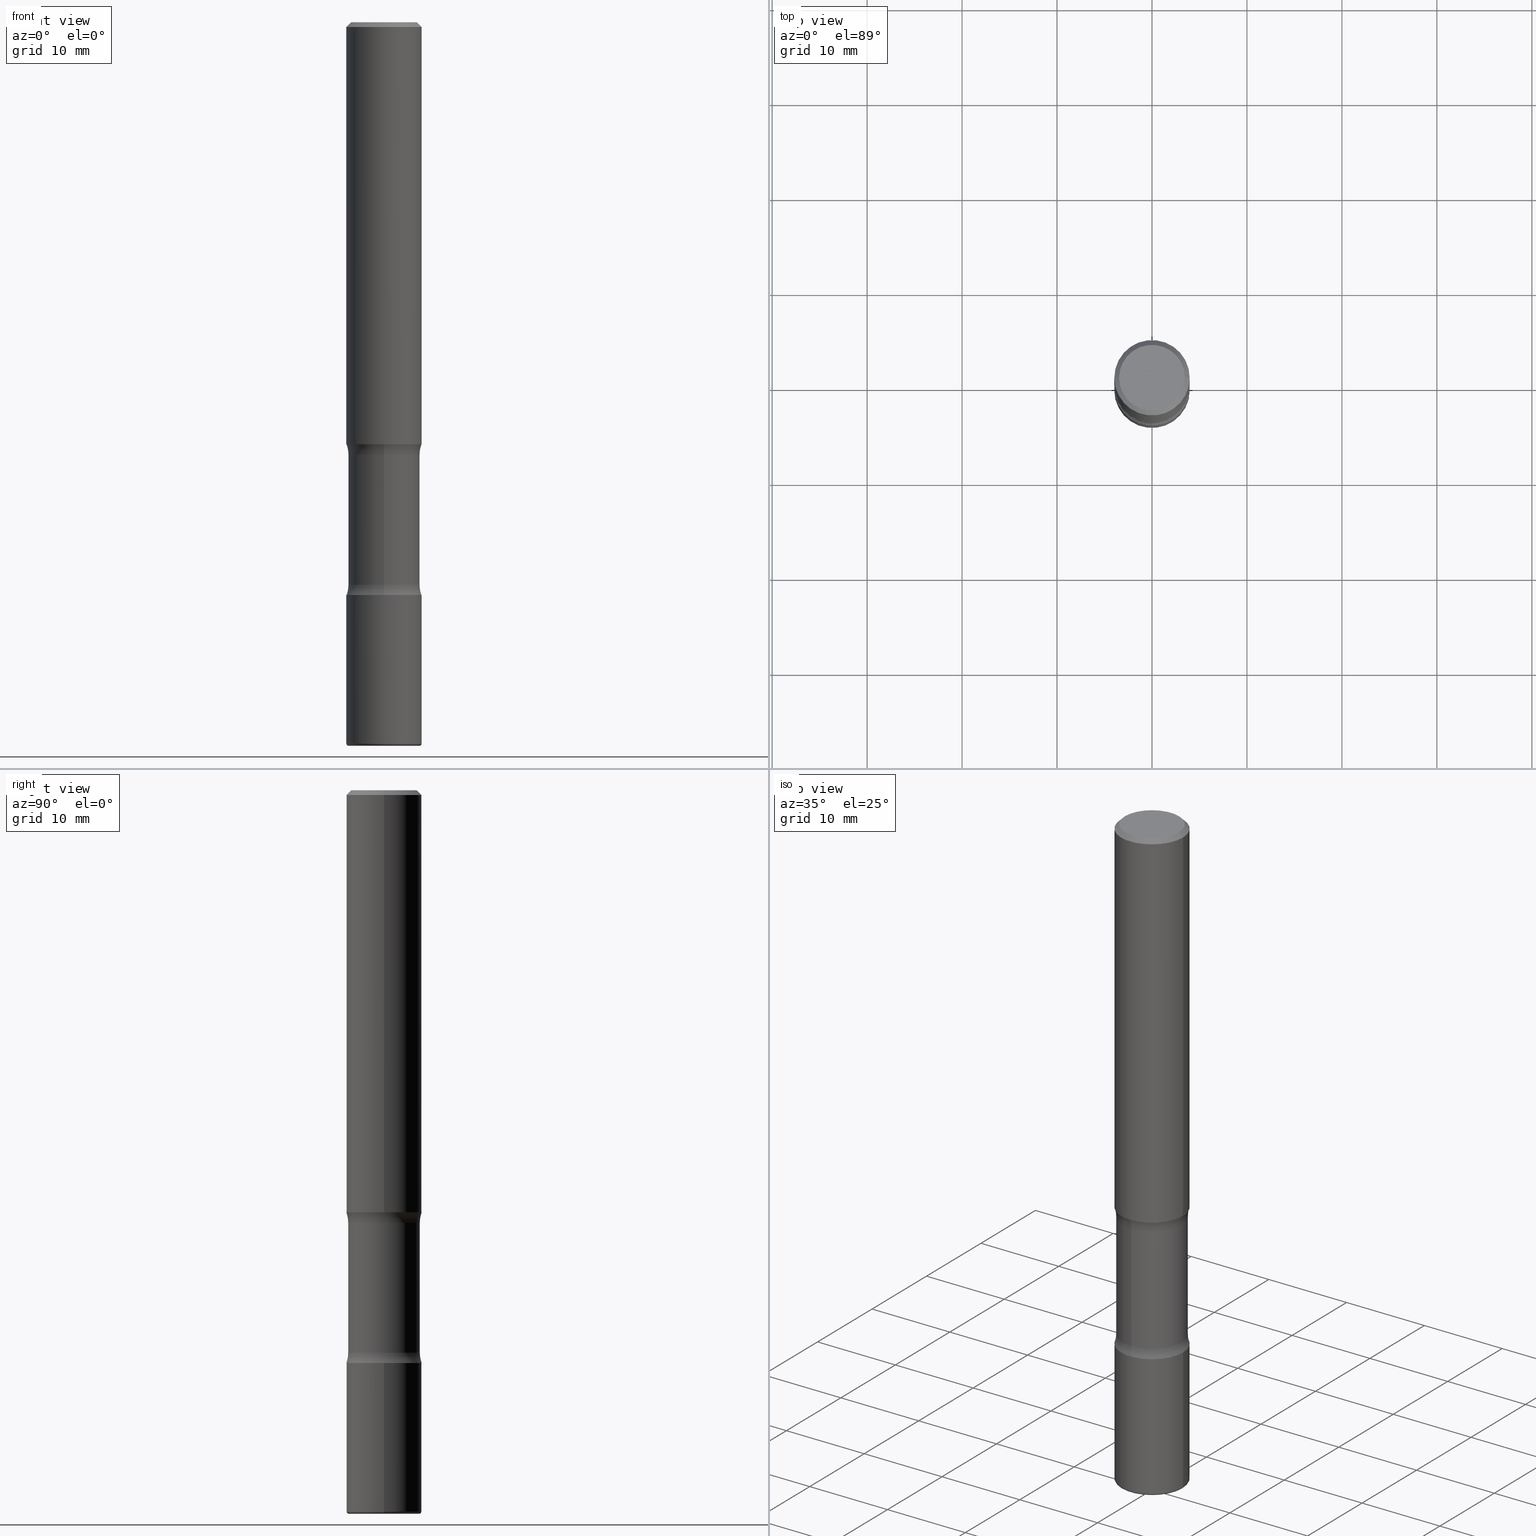
[diagram: canonical four-view strip — front | top / right | iso, engineering-drawing reading convention]
A machine part, canonical four-view strip (front | top / right | iso — engineering-drawing reading convention). The complete STEP part file that produces these views, byte-faithful:
ISO-10303-21;
HEADER;
FILE_DESCRIPTION (( 'STEP AP203' ),
    '1' );
FILE_NAME ('37812.STEP',
    '2024-03-02T00:27:00',
    ( '' ),
    ( '' ),
    'SwSTEP 2.0',
    'SolidWorks 2023',
    '' );
FILE_SCHEMA (( 'CONFIG_CONTROL_DESIGN' ));
ENDSEC;

DATA;
#1 = EDGE_CURVE ( 'NONE', #314, #108, #77, .T. ) ;
#2 = CARTESIAN_POINT ( 'NONE',  ( 4.890937612370273159E-31, -6.982962677686291609E-17, -0.02000000000000000042 ) ) ;
#3 = AXIS2_PLACEMENT_3D ( 'NONE', #444, #455, #98 ) ;
#4 = AXIS2_PLACEMENT_3D ( 'NONE', #192, #530, #363 ) ;
#5 = DIRECTION ( 'NONE',  ( -2.445468806185136597E-29, 3.491481338843145583E-15, 1.000000000000000000 ) ) ;
#6 = ORIENTED_EDGE ( 'NONE', *, *, #373, .T. ) ;
#7 = APPLICATION_CONTEXT ( 'configuration controlled 3d designs of mechanical parts and assemblies' ) ;
#8 = CARTESIAN_POINT ( 'NONE',  ( -1.071952812151744220E-15, -0.1562500000000084099, -2.375000000000000000 ) ) ;
#9 = CARTESIAN_POINT ( 'NONE',  ( 1.091087918388537746E-15, 0.1562499999999918121, -2.375000000000000888 ) ) ;
#10 = ORIENTED_EDGE ( 'NONE', *, *, #79, .F. ) ;
#11 = DIRECTION ( 'NONE',  ( 1.000000000000000000, -6.982962677686270655E-15, 0.000000000000000000 ) ) ;
#12 = VERTEX_POINT ( 'NONE', #418 ) ;
#13 = CARTESIAN_POINT ( 'NONE',  ( 0.1362499999999998712, -1.038262645562517138E-15, 6.957025900226689470E-30 ) ) ;
#14 = EDGE_CURVE ( 'NONE', #503, #149, #282, .T. ) ;
#15 = FACE_OUTER_BOUND ( 'NONE', #70, .T. ) ;
#16 = LOCAL_TIME ( 19, 27, 0.000000000000000000, #428 ) ;
#17 = EDGE_LOOP ( 'NONE', ( #308, #157, #288, #485 ) ) ;
#18 = CARTESIAN_POINT ( 'NONE',  ( 0.000000000000000000, 0.000000000000000000, 0.000000000000000000 ) ) ;
#19 = CC_DESIGN_APPROVAL ( #160, ( #33 ) ) ;
#20 = VERTEX_POINT ( 'NONE', #406 ) ;
#21 = DIRECTION ( 'NONE',  ( -2.445468806185136597E-29, 3.491481338843145583E-15, 1.000000000000000000 ) ) ;
#22 = ORIENTED_EDGE ( 'NONE', *, *, #450, .F. ) ;
#23 = DIRECTION ( 'NONE',  ( 1.000000000000000000, -6.982962677686266711E-15, 4.876176775795936353E-29 ) ) ;
#24 = PLANE ( 'NONE',  #147 ) ;
#25 = DIRECTION ( 'NONE',  ( 2.523926373086038410E-29, -3.379125637513666367E-15, -1.000000000000000000 ) ) ;
#26 = ORIENTED_EDGE ( 'NONE', *, *, #323, .T. ) ;
#27 = DIMENSIONAL_EXPONENTS ( 1.000000000000000000, 0.000000000000000000, 0.000000000000000000, 0.000000000000000000, 0.000000000000000000, 0.000000000000000000, 0.000000000000000000 ) ;
#28 = FACE_OUTER_BOUND ( 'NONE', #103, .T. ) ;
#29 = ADVANCED_BREP_SHAPE_REPRESENTATION ( '37812', ( #80, #81, #74, #364 ), #312 ) ;
#30 = DIRECTION ( 'NONE',  ( 6.982962677686265922E-15, 1.000000000000000000, -3.379125637513666367E-15 ) ) ;
#31 = ORIENTED_EDGE ( 'NONE', *, *, #328, .T. ) ;
#32 = CIRCLE ( 'NONE', #421, 0.1562500000000001388 ) ;
#33 = SECURITY_CLASSIFICATION ( '', '', #305 ) ;
#34 = EDGE_CURVE ( 'NONE', #116, #458, #425, .T. ) ;
#35 = COORDINATED_UNIVERSAL_TIME_OFFSET ( 5, 0, .BEHIND. ) ;
#36 = CIRCLE ( 'NONE', #380, 0.1484375000000000278 ) ;
#37 = AXIS2_PLACEMENT_3D ( 'NONE', #267, #442, #52 ) ;
#38 = DIRECTION ( 'NONE',  ( 0.000000000000000000, 0.000000000000000000, 1.000000000000000000 ) ) ;
#39 = CARTESIAN_POINT ( 'NONE',  ( -0.1462500000000001021, -9.382290721998072185E-15, -3.000000000000000888 ) ) ;
#40 = DIRECTION ( 'NONE',  ( 1.000000000000000000, -6.982962677686269077E-15, 0.000000000000000000 ) ) ;
#41 = APPROVAL_STATUS ( 'not_yet_approved' ) ;
#42 = DIRECTION ( 'NONE',  ( -1.000000000000000000, 6.982962677686266711E-15, 0.000000000000000000 ) ) ;
#43 = EDGE_CURVE ( 'NONE', #524, #116, #551, .T. ) ;
#44 = PERSON_AND_ORGANIZATION_ROLE ( 'creator' ) ;
#45 = AXIS2_PLACEMENT_3D ( 'NONE', #195, #366, #333 ) ;
#46 = CARTESIAN_POINT ( 'NONE',  ( 1.091087918388522561E-15, 0.1562499999999940048, -1.750000000000001110 ) ) ;
#47 = ADVANCED_FACE ( 'NONE', ( #177 ), #170, .F. ) ;
#48 = DIRECTION ( 'NONE',  ( 1.000000000000000000, -6.982962677686266711E-15, 0.000000000000000000 ) ) ;
#49 = APPROVAL_STATUS ( 'not_yet_approved' ) ;
#50 = CIRCLE ( 'NONE', #122, 0.1484375000000000278 ) ;
#51 = CONICAL_SURFACE ( 'NONE', #382, 0.1562499999999998612, 0.7853981633974480570 ) ;
#52 = DIRECTION ( 'NONE',  ( 6.982962677686265133E-15, 1.000000000000000000, -3.680805717779217644E-15 ) ) ;
#53 = ORIENTED_EDGE ( 'NONE', *, *, #328, .F. ) ;
#54 = EDGE_CURVE ( 'NONE', #12, #20, #36, .T. ) ;
#55 = CARTESIAN_POINT ( 'NONE',  ( 7.385442397868472267E-29, -1.040422170319851125E-14, -2.999999999999999556 ) ) ;
#56 = ORIENTED_EDGE ( 'NONE', *, *, #411, .T. ) ;
#57 = DIRECTION ( 'NONE',  ( 1.000000000000000000, -6.982962677686266711E-15, 4.876176775795936353E-29 ) ) ;
#58 = ORIENTED_EDGE ( 'NONE', *, *, #221, .T. ) ;
#59 = DIRECTION ( 'NONE',  ( 6.982962677686266711E-15, 1.000000000000000000, -3.496765431890253370E-15 ) ) ;
#60 = LINE ( 'NONE', #235, #396 ) ;
#61 = VERTEX_POINT ( 'NONE', #345 ) ;
#62 = EDGE_CURVE ( 'NONE', #190, #533, #193, .T. ) ;
#63 = DIRECTION ( 'NONE',  ( 2.523926373086038410E-29, -3.379125637513666367E-15, -1.000000000000000000 ) ) ;
#64 = VECTOR ( 'NONE', #109, 39.37007874015748143 ) ;
#65 = ORIENTED_EDGE ( 'NONE', *, *, #79, .T. ) ;
#66 = FACE_OUTER_BOUND ( 'NONE', #321, .T. ) ;
#67 = ORIENTED_EDGE ( 'NONE', *, *, #383, .T. ) ;
#68 = DIRECTION ( 'NONE',  ( 6.860497997771530774E-15, 1.000000000000000000, 0.000000000000000000 ) ) ;
#69 = ADVANCED_FACE ( 'NONE', ( #342 ), #146, .F. ) ;
#70 = EDGE_LOOP ( 'NONE', ( #319, #10 ) ) ;
#71 = DIRECTION ( 'NONE',  ( -1.000000000000000000, 6.982962677686265922E-15, -4.883557194083112340E-29 ) ) ;
#72 = DIRECTION ( 'NONE',  ( 6.860497997771530774E-15, 1.000000000000000000, 0.000000000000000000 ) ) ;
#73 = ADVANCED_FACE ( 'NONE', ( #388 ), #132, .F. ) ;
#74 = MANIFOLD_SOLID_BREP ( 'Body-Move/Copy2[4]', #133 ) ;
#75 = DIRECTION ( 'NONE',  ( 1.000000000000000000, -6.982962677686266711E-15, 4.876176775795936353E-29 ) ) ;
#76 = FACE_OUTER_BOUND ( 'NONE', #496, .T. ) ;
#77 = CIRCLE ( 'NONE', #196, 0.1362499999999998712 ) ;
#78 = APPROVAL_PERSON_ORGANIZATION ( #430, #553, #389 ) ;
#79 = EDGE_CURVE ( 'NONE', #402, #105, #501, .T. ) ;
#80 = MANIFOLD_SOLID_BREP ( 'Body-Move/Copy2[1]', #520 ) ;
#81 = MANIFOLD_SOLID_BREP ( 'Body-Move/Copy2[2]', #167 ) ;
#82 = CARTESIAN_POINT ( 'NONE',  ( -0.1562500000000001388, 1.110223024625157526E-15, -7.685836078523296765E-30 ) ) ;
#83 = TOROIDAL_SURFACE ( 'NONE', #261, 0.2734375000000000000, 0.1250000000000000000 ) ;
#84 = PERSON_AND_ORGANIZATION ( #423, #433 ) ;
#85 = CARTESIAN_POINT ( 'NONE',  ( -0.1562500000000001665, -9.329306178515849742E-15, -2.990000000000000657 ) ) ;
#86 = LENGTH_MEASURE_WITH_UNIT ( LENGTH_MEASURE( 0.02539999999999999897 ), #336 );
#87 = ADVANCED_FACE ( 'NONE', ( #91 ), #437, .T. ) ;
#88 = APPROVAL_DATE_TIME ( #477, #553 ) ;
#89 = AXIS2_PLACEMENT_3D ( 'NONE', #18, #199, #369 ) ;
#90 = CONICAL_SURFACE ( 'NONE', #534, 0.1562499999999998612, 0.7853981633974480570 ) ;
#91 = FACE_OUTER_BOUND ( 'NONE', #17, .T. ) ;
#92 = FACE_OUTER_BOUND ( 'NONE', #227, .T. ) ;
#93 = CYLINDRICAL_SURFACE ( 'NONE', #89, 0.1562499999999999722 ) ;
#94 = ORIENTED_EDGE ( 'NONE', *, *, #62, .T. ) ;
#95 = AXIS2_PLACEMENT_3D ( 'NONE', #393, #213, #338 ) ;
#96 = EDGE_CURVE ( 'NONE', #458, #97, #32, .T. ) ;
#97 = VERTEX_POINT ( 'NONE', #85 ) ;
#98 = DIRECTION ( 'NONE',  ( 1.000000000000000000, -6.982962677686266711E-15, 0.000000000000000000 ) ) ;
#99 = ORIENTED_EDGE ( 'NONE', *, *, #248, .T. ) ;
#100 = FACE_OUTER_BOUND ( 'NONE', #377, .T. ) ;
#101 = ORIENTED_EDGE ( 'NONE', *, *, #538, .F. ) ;
#102 = CARTESIAN_POINT ( 'NONE',  ( 4.230534431510926007E-29, -6.180314656306430561E-15, -1.750000000000000444 ) ) ;
#103 = EDGE_LOOP ( 'NONE', ( #324, #26, #448, #365 ) ) ;
#104 = DIRECTION ( 'NONE',  ( -6.982962677686265922E-15, -1.000000000000000000, 3.379125637513666367E-15 ) ) ;
#105 = VERTEX_POINT ( 'NONE', #46 ) ;
#106 = DIRECTION ( 'NONE',  ( 6.982962677686265133E-15, 1.000000000000000000, -3.680805717779217644E-15 ) ) ;
#107 = EDGE_CURVE ( 'NONE', #306, #190, #219, .T. ) ;
#108 = VERTEX_POINT ( 'NONE', #13 ) ;
#109 = DIRECTION ( 'NONE',  ( -2.445468806185136877E-29, 3.491481338843145188E-15, 1.000000000000000000 ) ) ;
#110 = CIRCLE ( 'NONE', #548, 0.1562500000000001110 ) ;
#111 = VERTEX_POINT ( 'NONE', #361 ) ;
#112 = DIRECTION ( 'NONE',  ( 6.982962677686265133E-15, 1.000000000000000000, -3.680805717779216855E-15 ) ) ;
#113 = CC_DESIGN_DATE_AND_TIME_ASSIGNMENT ( #297, #475, ( #435 ) ) ;
#114 = EDGE_LOOP ( 'NONE', ( #140, #499, #162, #539 ) ) ;
#115 = CARTESIAN_POINT ( 'NONE',  ( -1.875917421265595575E-15, -0.2734375000000081046, -2.331501840915390034 ) ) ;
#116 = VERTEX_POINT ( 'NONE', #185 ) ;
#117 = CARTESIAN_POINT ( 'NONE',  ( 0.1562500000000001665, -1.153061712152948940E-14, -2.990000000000000657 ) ) ;
#118 = CC_DESIGN_SECURITY_CLASSIFICATION ( #33, ( #270 ) ) ;
#119 = APPROVAL_DATE_TIME ( #299, #417 ) ;
#120 = EDGE_CURVE ( 'NONE', #116, #524, #294, .T. ) ;
#121 = APPLICATION_PROTOCOL_DEFINITION ( 'international standard', 'config_control_design', 1994, #7 ) ;
#122 = AXIS2_PLACEMENT_3D ( 'NONE', #500, #486, #112 ) ;
#123 = DIRECTION ( 'NONE',  ( 2.523926373086038410E-29, -3.379125637513666367E-15, -1.000000000000000000 ) ) ;
#124 = AXIS2_PLACEMENT_3D ( 'NONE', #218, #470, #178 ) ;
#125 = CARTESIAN_POINT ( 'NONE',  ( 0.000000000000000000, 0.000000000000000000, 0.000000000000000000 ) ) ;
#126 = CARTESIAN_POINT ( 'NONE',  ( 7.311951730493559366E-29, -1.043952920314100786E-14, -2.990000000000000657 ) ) ;
#127 = CALENDAR_DATE ( 2024, 1, 3 ) ;
#128 = ADVANCED_FACE ( 'NONE', ( #317 ), #461, .T. ) ;
#129 = DIRECTION ( 'NONE',  ( 6.982962677686265922E-15, 1.000000000000000000, -3.379125637513666761E-15 ) ) ;
#130 = COORDINATED_UNIVERSAL_TIME_OFFSET ( 5, 0, .BEHIND. ) ;
#131 = CC_DESIGN_PERSON_AND_ORGANIZATION_ASSIGNMENT ( #251, #255, ( #445 ) ) ;
#132 = PLANE ( 'NONE',  #334 ) ;
#133 = CLOSED_SHELL ( 'NONE', ( #128, #69, #47, #356, #303, #300, #386, #87 ) ) ;
#134 = AXIS2_PLACEMENT_3D ( 'NONE', #241, #156, #23 ) ;
#135 = CARTESIAN_POINT ( 'NONE',  ( 4.338252820539708503E-29, -6.330261553535058631E-15, -1.793498159084610410 ) ) ;
#136 = CALENDAR_DATE ( 2024, 1, 3 ) ;
#137 = ORIENTED_EDGE ( 'NONE', *, *, #148, .F. ) ;
#138 = DIRECTION ( 'NONE',  ( -2.445468806185136597E-29, 3.491481338843145583E-15, 1.000000000000000000 ) ) ;
#139 = COORDINATED_UNIVERSAL_TIME_OFFSET ( 5, 0, .BEHIND. ) ;
#140 = ORIENTED_EDGE ( 'NONE', *, *, #373, .F. ) ;
#141 = DIRECTION ( 'NONE',  ( -6.982962677686266711E-15, -1.000000000000000000, 3.491481338843145583E-15 ) ) ;
#142 = FACE_OUTER_BOUND ( 'NONE', #280, .T. ) ;
#143 = CARTESIAN_POINT ( 'NONE',  ( 4.890937612370273159E-31, -6.982962677686291609E-17, -0.02000000000000000042 ) ) ;
#144 = ORIENTED_EDGE ( 'NONE', *, *, #173, .T. ) ;
#145 = DIRECTION ( 'NONE',  ( 2.445468806185136597E-29, -3.491481338843145583E-15, -1.000000000000000000 ) ) ;
#146 = TOROIDAL_SURFACE ( 'NONE', #301, 0.2734375000000000000, 0.1250000000000000000 ) ;
#147 = AXIS2_PLACEMENT_3D ( 'NONE', #451, #187, #488 ) ;
#148 = EDGE_CURVE ( 'NONE', #458, #236, #191, .T. ) ;
#149 = VERTEX_POINT ( 'NONE', #8 ) ;
#150 = DIRECTION ( 'NONE',  ( -1.000000000000000000, 6.982962677686265922E-15, -4.876176775795935793E-29 ) ) ;
#151 = CARTESIAN_POINT ( 'NONE',  ( 4.279570410823989605E-29, -6.110092342975506249E-15, -1.750000000000000444 ) ) ;
#152 = ORIENTED_EDGE ( 'NONE', *, *, #538, .T. ) ;
#153 = CARTESIAN_POINT ( 'NONE',  ( -0.1562499999999999722, 1.110223024625156343E-15, -7.685836078523288357E-30 ) ) ;
#154 = ORIENTED_EDGE ( 'NONE', *, *, #550, .F. ) ;
#155 = ADVANCED_FACE ( 'NONE', ( #142 ), #480, .T. ) ;
#156 = DIRECTION ( 'NONE',  ( -2.445468806185136597E-29, 3.491481338843145583E-15, 1.000000000000000000 ) ) ;
#157 = ORIENTED_EDGE ( 'NONE', *, *, #54, .T. ) ;
#158 = DIRECTION ( 'NONE',  ( 1.000000000000000000, -6.982962677686265922E-15, 4.883557194083112340E-29 ) ) ;
#159 = ORIENTED_EDGE ( 'NONE', *, *, #323, .F. ) ;
#160 = APPROVAL ( #49, 'UNSPECIFIED' ) ;
#161 = DIRECTION ( 'NONE',  ( 2.523926373086038410E-29, -3.379125637513666367E-15, -1.000000000000000000 ) ) ;
#162 = ORIENTED_EDGE ( 'NONE', *, *, #450, .T. ) ;
#163 = CARTESIAN_POINT ( 'NONE',  ( 0.1562500000000000833, -7.201180261363985422E-15, -1.750000000000000444 ) ) ;
#164 = AXIS2_PLACEMENT_3D ( 'NONE', #2, #559, #48 ) ;
#165 = CIRCLE ( 'NONE', #124, 0.1250000000000000000 ) ;
#166 = DIRECTION ( 'NONE',  ( 6.982962677686265922E-15, 1.000000000000000000, -3.496765431890254553E-15 ) ) ;
#167 = CLOSED_SHELL ( 'NONE', ( #239, #516, #392, #180, #465, #222 ) ) ;
#168 = DIRECTION ( 'NONE',  ( -2.445468806185136597E-29, 3.491481338843145583E-15, 1.000000000000000000 ) ) ;
#169 = DIRECTION ( 'NONE',  ( -0.7071067811865473507, 2.468850131082255088E-15, -0.7071067811865476838 ) ) ;
#170 = TOROIDAL_SURFACE ( 'NONE', #339, 0.2734375000000000555, 0.1250000000000000000 ) ;
#171 = CIRCLE ( 'NONE', #45, 0.1562500000000001110 ) ;
#172 = APPROVAL_PERSON_ORGANIZATION ( #265, #160, #350 ) ;
#173 = EDGE_CURVE ( 'NONE', #20, #12, #50, .T. ) ;
#174 = CC_DESIGN_PERSON_AND_ORGANIZATION_ASSIGNMENT ( #431, #44, ( #270 ) ) ;
#175 = DIRECTION ( 'NONE',  ( -1.000000000000000000, 6.982962677686265922E-15, -4.876176775795935793E-29 ) ) ;
#176 = AXIS2_PLACEMENT_3D ( 'NONE', #55, #407, #186 ) ;
#177 = FACE_OUTER_BOUND ( 'NONE', #275, .T. ) ;
#178 = DIRECTION ( 'NONE',  ( -6.982962677686265922E-15, -1.000000000000000000, 0.000000000000000000 ) ) ;
#179 = PERSON_AND_ORGANIZATION ( #423, #433 ) ;
#180 = ADVANCED_FACE ( 'NONE', ( #66 ), #351, .F. ) ;
#181 = APPROVAL_DATE_TIME ( #226, #160 ) ;
#182 = CARTESIAN_POINT ( 'NONE',  ( 4.230534431510926007E-29, -6.180314656306430561E-15, -1.750000000000000444 ) ) ;
#183 = AXIS2_PLACEMENT_3D ( 'NONE', #462, #459, #504 ) ;
#184 = LOCAL_TIME ( 19, 27, 0.000000000000000000, #557 ) ;
#185 = CARTESIAN_POINT ( 'NONE',  ( 0.1462500000000001021, -1.149570230814105617E-14, -3.000000000000000888 ) ) ;
#186 = DIRECTION ( 'NONE',  ( 6.982962677686266711E-15, 1.000000000000000000, -3.680805717779217644E-15 ) ) ;
#187 = DIRECTION ( 'NONE',  ( -2.438088387897960049E-29, 3.491481338843145188E-15, 1.000000000000000000 ) ) ;
#188 = ORIENTED_EDGE ( 'NONE', *, *, #203, .F. ) ;
#189 = CARTESIAN_POINT ( 'NONE',  ( -0.1362499999999998712, 9.863434782231840290E-16, -6.775751096333132877E-30 ) ) ;
#190 = VERTEX_POINT ( 'NONE', #322 ) ;
#191 = LINE ( 'NONE', #228, #432 ) ;
#192 = CARTESIAN_POINT ( 'NONE',  ( 0.000000000000000000, 0.000000000000000000, 0.000000000000000000 ) ) ;
#193 = CIRCLE ( 'NONE', #164, 0.1562499999999998612 ) ;
#194 = ORIENTED_EDGE ( 'NONE', *, *, #14, .F. ) ;
#195 = CARTESIAN_POINT ( 'NONE',  ( 5.807988414689700538E-29, -8.292268179752471696E-15, -2.375000000000000444 ) ) ;
#196 = AXIS2_PLACEMENT_3D ( 'NONE', #244, #463, #75 ) ;
#197 = APPROVAL_PERSON_ORGANIZATION ( #84, #417, #293 ) ;
#198 = ORIENTED_EDGE ( 'NONE', *, *, #62, .F. ) ;
#199 = DIRECTION ( 'NONE',  ( -2.445468806185136597E-29, 3.491481338843145583E-15, 1.000000000000000000 ) ) ;
#200 = ORIENTED_EDGE ( 'NONE', *, *, #34, .T. ) ;
#201 = CARTESIAN_POINT ( 'NONE',  ( 0.000000000000000000, 0.000000000000000000, 0.000000000000000000 ) ) ;
#202 = ORIENTED_EDGE ( 'NONE', *, *, #107, .T. ) ;
#203 = EDGE_CURVE ( 'NONE', #204, #236, #209, .T. ) ;
#204 = VERTEX_POINT ( 'NONE', #525 ) ;
#205 = CARTESIAN_POINT ( 'NONE',  ( 4.890937612370273159E-31, -6.982962677686291609E-17, -0.02000000000000000042 ) ) ;
#206 = ORIENTED_EDGE ( 'NONE', *, *, #337, .F. ) ;
#207 = CARTESIAN_POINT ( 'NONE',  ( -0.1562500000000000833, -1.979737960251025472E-15, -1.750000000000000444 ) ) ;
#208 = LINE ( 'NONE', #401, #481 ) ;
#209 = CIRCLE ( 'NONE', #484, 0.1562500000000001110 ) ;
#210 = AXIS2_PLACEMENT_3D ( 'NONE', #115, #287, #72 ) ;
#211 = EDGE_CURVE ( 'NONE', #111, #61, #249, .T. ) ;
#212 = AXIS2_PLACEMENT_3D ( 'NONE', #151, #318, #452 ) ;
#213 = DIRECTION ( 'NONE',  ( -2.445468806185136597E-29, 3.491481338843145583E-15, 1.000000000000000000 ) ) ;
#214 = DIRECTION ( 'NONE',  ( -2.445468806185136597E-29, 3.491481338843145583E-15, 1.000000000000000000 ) ) ;
#215 =( NAMED_UNIT ( * ) PLANE_ANGLE_UNIT ( ) SI_UNIT ( $, .RADIAN. ) );
#216 = AXIS2_PLACEMENT_3D ( 'NONE', #102, #399, #59 ) ;
#217 = CARTESIAN_POINT ( 'NONE',  ( 4.340320582405264943E-29, -6.327300400853882778E-15, -1.793498159084609966 ) ) ;
#218 = CARTESIAN_POINT ( 'NONE',  ( 1.909403857179895154E-15, 0.2734374999999918399, -2.331501840915391366 ) ) ;
#219 = LINE ( 'NONE', #327, #224 ) ;
#220 = DATE_TIME_ROLE ( 'classification_date' ) ;
#221 = EDGE_CURVE ( 'NONE', #105, #402, #311, .T. ) ;
#222 = ADVANCED_FACE ( 'NONE', ( #234 ), #93, .T. ) ;
#223 = CARTESIAN_POINT ( 'NONE',  ( 5.807988414689700538E-29, -8.292268179752471696E-15, -2.375000000000000444 ) ) ;
#224 = VECTOR ( 'NONE', #529, 39.37007874015748143 ) ;
#225 = CIRCLE ( 'NONE', #37, 0.1484375000000000000 ) ;
#226 = DATE_AND_TIME ( #136, #341 ) ;
#227 = EDGE_LOOP ( 'NONE', ( #285, #326 ) ) ;
#228 = CARTESIAN_POINT ( 'NONE',  ( 0.1562500000000001388, -1.091087918388480160E-15, 7.619026212181157383E-30 ) ) ;
#229 = ORIENTED_EDGE ( 'NONE', *, *, #427, .F. ) ;
#230 = CARTESIAN_POINT ( 'NONE',  ( 5.698202263795362163E-29, -8.145282435205020267E-15, -2.331501840915390478 ) ) ;
#231 = CYLINDRICAL_SURFACE ( 'NONE', #4, 0.1562500000000001388 ) ;
#232 = DIRECTION ( 'NONE',  ( -1.000000000000000000, 6.982962677686266711E-15, 0.000000000000000000 ) ) ;
#233 = CARTESIAN_POINT ( 'NONE',  ( 5.807988414689700538E-29, -8.292268179752471696E-15, -2.375000000000000444 ) ) ;
#234 = FACE_OUTER_BOUND ( 'NONE', #489, .T. ) ;
#235 = CARTESIAN_POINT ( 'NONE',  ( 1.036533522469128973E-15, 0.1484374999999896194, -3.000000000000000444 ) ) ;
#236 = VERTEX_POINT ( 'NONE', #354 ) ;
#237 = FACE_OUTER_BOUND ( 'NONE', #372, .T. ) ;
#238 = AXIS2_PLACEMENT_3D ( 'NONE', #540, #71, #374 ) ;
#239 = ADVANCED_FACE ( 'NONE', ( #281 ), #310, .T. ) ;
#240 = ORIENTED_EDGE ( 'NONE', *, *, #1, .T. ) ;
#241 = CARTESIAN_POINT ( 'NONE',  ( 0.000000000000000000, 0.000000000000000000, 0.000000000000000000 ) ) ;
#242 = ORIENTED_EDGE ( 'NONE', *, *, #264, .T. ) ;
#243 = DIRECTION ( 'NONE',  ( 6.982962677686265922E-15, 1.000000000000000000, -3.379125637513666761E-15 ) ) ;
#244 = CARTESIAN_POINT ( 'NONE',  ( 0.000000000000000000, 0.000000000000000000, 0.000000000000000000 ) ) ;
#245 = CARTESIAN_POINT ( 'NONE',  ( 7.311951730493559366E-29, -1.043952920314100786E-14, -2.990000000000000657 ) ) ;
#246 = CARTESIAN_POINT ( 'NONE',  ( -0.1462500000000000744, -9.400360452091861401E-15, -2.990000000000000657 ) ) ;
#247 = ORIENTED_EDGE ( 'NONE', *, *, #248, .F. ) ;
#248 = EDGE_CURVE ( 'NONE', #20, #105, #362, .T. ) ;
#249 = CIRCLE ( 'NONE', #556, 0.1484375000000000000 ) ;
#250 = EDGE_CURVE ( 'NONE', #12, #111, #307, .T. ) ;
#251 = PERSON_AND_ORGANIZATION ( #423, #433 ) ;
#252 = CC_DESIGN_PERSON_AND_ORGANIZATION_ASSIGNMENT ( #395, #438, ( #270 ) ) ;
#253 = AXIS2_PLACEMENT_3D ( 'NONE', #182, #523, #304 ) ;
#254 = CIRCLE ( 'NONE', #210, 0.1250000000000000000 ) ;
#255 = PERSON_AND_ORGANIZATION_ROLE ( 'design_owner' ) ;
#256 = DIRECTION ( 'NONE',  ( -2.445468806185136597E-29, 3.491481338843145583E-15, 1.000000000000000000 ) ) ;
#257 = APPROVAL_STATUS ( 'not_yet_approved' ) ;
#258 = EDGE_CURVE ( 'NONE', #97, #458, #558, .T. ) ;
#259 = DIRECTION ( 'NONE',  ( -2.445468806185136877E-29, 3.491481338843145188E-15, 1.000000000000000000 ) ) ;
#260 = CC_DESIGN_APPROVAL ( #417, ( #435 ) ) ;
#261 = AXIS2_PLACEMENT_3D ( 'NONE', #331, #25, #532 ) ;
#262 = CC_DESIGN_APPROVAL ( #553, ( #270 ) ) ;
#263 = SHAPE_DEFINITION_REPRESENTATION ( #359, #29 ) ;
#264 = EDGE_CURVE ( 'NONE', #61, #111, #225, .T. ) ;
#265 = PERSON_AND_ORGANIZATION ( #423, #433 ) ;
#266 = ORIENTED_EDGE ( 'NONE', *, *, #43, .T. ) ;
#267 = CARTESIAN_POINT ( 'NONE',  ( 5.698202263795362163E-29, -8.145282435205020267E-15, -2.331501840915390478 ) ) ;
#268 = TOROIDAL_SURFACE ( 'NONE', #408, 0.2734375000000000555, 0.1250000000000000000 ) ;
#269 = ORIENTED_EDGE ( 'NONE', *, *, #427, .T. ) ;
#270 = PRODUCT_DEFINITION_FORMATION_WITH_SPECIFIED_SOURCE ( 'ANY', '', #445, .NOT_KNOWN. ) ;
#271 = VERTEX_POINT ( 'NONE', #207 ) ;
#272 = DIRECTION ( 'NONE',  ( 1.000000000000000000, -6.982962677686265922E-15, 4.883557194083112340E-29 ) ) ;
#273 = FACE_OUTER_BOUND ( 'NONE', #446, .T. ) ;
#274 = FACE_OUTER_BOUND ( 'NONE', #114, .T. ) ;
#275 = EDGE_LOOP ( 'NONE', ( #498, #541, #65, #247 ) ) ;
#276 = ADVANCED_FACE ( 'NONE', ( #28 ), #502, .T. ) ;
#277 = CARTESIAN_POINT ( 'NONE',  ( 7.311951730493559366E-29, -1.043952920314100786E-14, -2.990000000000000657 ) ) ;
#278 = ORIENTED_EDGE ( 'NONE', *, *, #203, .T. ) ;
#279 = CARTESIAN_POINT ( 'NONE',  ( -1.875917421265609774E-15, -0.2734375000000063838, -1.793498159084609522 ) ) ;
#280 = EDGE_LOOP ( 'NONE', ( #159, #266, #200, #505 ) ) ;
#281 = FACE_OUTER_BOUND ( 'NONE', #492, .T. ) ;
#282 = CIRCLE ( 'NONE', #348, 0.1562500000000001110 ) ;
#283 = LINE ( 'NONE', #153, #64 ) ;
#284 = AXIS2_PLACEMENT_3D ( 'NONE', #495, #325, #104 ) ;
#285 = ORIENTED_EDGE ( 'NONE', *, *, #120, .F. ) ;
#286 = DIRECTION ( 'NONE',  ( -2.445468806185136597E-29, 3.491481338843145583E-15, 1.000000000000000000 ) ) ;
#287 = DIRECTION ( 'NONE',  ( 1.000000000000000000, -6.860497997771530774E-15, 4.842174840124134267E-29 ) ) ;
#288 = ORIENTED_EDGE ( 'NONE', *, *, #478, .T. ) ;
#289 = FACE_OUTER_BOUND ( 'NONE', #439, .T. ) ;
#290 = AXIS2_PLACEMENT_3D ( 'NONE', #246, #410, #376 ) ;
#291 = MECHANICAL_CONTEXT ( 'NONE', #7, 'mechanical' ) ;
#292 = PERSON_AND_ORGANIZATION ( #423, #433 ) ;
#293 = APPROVAL_ROLE ( '' ) ;
#294 = CIRCLE ( 'NONE', #3, 0.1462500000000001021 ) ;
#295 = CIRCLE ( 'NONE', #385, 0.1362499999999998712 ) ;
#296 = DIRECTION ( 'NONE',  ( 2.523926373086038410E-29, -3.379125637513666367E-15, -1.000000000000000000 ) ) ;
#297 = DATE_AND_TIME ( #513, #16 ) ;
#298 = EDGE_CURVE ( 'NONE', #108, #314, #295, .T. ) ;
#299 = DATE_AND_TIME ( #515, #511 ) ;
#300 = ADVANCED_FACE ( 'NONE', ( #405 ), #542, .F. ) ;
#301 = AXIS2_PLACEMENT_3D ( 'NONE', #519, #123, #476 ) ;
#302 = AXIS2_PLACEMENT_3D ( 'NONE', #547, #168, #158 ) ;
#303 = ADVANCED_FACE ( 'NONE', ( #15 ), #371, .F. ) ;
#304 = DIRECTION ( 'NONE',  ( 6.982962677686266711E-15, 1.000000000000000000, -3.496765431890253370E-15 ) ) ;
#305 = SECURITY_CLASSIFICATION_LEVEL ( 'unclassified' ) ;
#306 = VERTEX_POINT ( 'NONE', #163 ) ;
#307 = LINE ( 'NONE', #544, #473 ) ;
#308 = ORIENTED_EDGE ( 'NONE', *, *, #250, .F. ) ;
#309 = EDGE_LOOP ( 'NONE', ( #67, #278 ) ) ;
#310 = CYLINDRICAL_SURFACE ( 'NONE', #134, 0.1562499999999999722 ) ;
#311 = CIRCLE ( 'NONE', #216, 0.1562500000000001665 ) ;
#312 =( GEOMETRIC_REPRESENTATION_CONTEXT ( 3 ) GLOBAL_UNCERTAINTY_ASSIGNED_CONTEXT ( ( #368 ) ) GLOBAL_UNIT_ASSIGNED_CONTEXT ( ( #387, #215, #467 ) ) REPRESENTATION_CONTEXT ( 'NONE', 'WORKASPACE' ) );
#313 = PERSON_AND_ORGANIZATION_ROLE ( 'classification_officer' ) ;
#314 = VERTEX_POINT ( 'NONE', #189 ) ;
#315 = DIRECTION ( 'NONE',  ( 0.7071067811865473507, -7.319954787623256045E-15, -0.7071067811865476838 ) ) ;
#316 = ORIENTED_EDGE ( 'NONE', *, *, #250, .T. ) ;
#317 = FACE_OUTER_BOUND ( 'NONE', #527, .T. ) ;
#318 = DIRECTION ( 'NONE',  ( -2.445468806185136597E-29, 3.491481338843145583E-15, 1.000000000000000000 ) ) ;
#319 = ORIENTED_EDGE ( 'NONE', *, *, #221, .F. ) ;
#320 = DIRECTION ( 'NONE',  ( 1.000000000000000000, -6.982962677686266711E-15, 4.876176775795936353E-29 ) ) ;
#321 = EDGE_LOOP ( 'NONE', ( #240, #460 ) ) ;
#322 = CARTESIAN_POINT ( 'NONE',  ( 0.1562499999999998612, -1.141782438928663922E-15, -0.02000000000000000042 ) ) ;
#323 = EDGE_CURVE ( 'NONE', #524, #97, #510, .T. ) ;
#324 = ORIENTED_EDGE ( 'NONE', *, *, #120, .T. ) ;
#325 = DIRECTION ( 'NONE',  ( -2.523926373086038130E-29, 3.379125637513666367E-15, 1.000000000000000000 ) ) ;
#326 = ORIENTED_EDGE ( 'NONE', *, *, #43, .F. ) ;
#327 = CARTESIAN_POINT ( 'NONE',  ( 0.1562499999999999722, -1.091087918388478976E-15, 7.619026212181148976E-30 ) ) ;
#328 = EDGE_CURVE ( 'NONE', #149, #503, #171, .T. ) ;
#329 = AXIS2_PLACEMENT_3D ( 'NONE', #277, #286, #272 ) ;
#330 = ORIENTED_EDGE ( 'NONE', *, *, #404, .F. ) ;
#331 = CARTESIAN_POINT ( 'NONE',  ( 5.701615023521807970E-29, -8.140395169034527718E-15, -2.331501840915390478 ) ) ;
#332 = ORIENTED_EDGE ( 'NONE', *, *, #298, .F. ) ;
#333 = DIRECTION ( 'NONE',  ( 6.982962677686265922E-15, 1.000000000000000000, -3.496765431890254553E-15 ) ) ;
#334 = AXIS2_PLACEMENT_3D ( 'NONE', #223, #479, #560 ) ;
#335 = AXIS2_PLACEMENT_3D ( 'NONE', #490, #358, #30 ) ;
#336 =( LENGTH_UNIT ( ) NAMED_UNIT ( * ) SI_UNIT ( $, .METRE. ) );
#337 = EDGE_CURVE ( 'NONE', #12, #402, #426, .T. ) ;
#338 = DIRECTION ( 'NONE',  ( 1.000000000000000000, -6.982962677686266711E-15, 0.000000000000000000 ) ) ;
#339 = AXIS2_PLACEMENT_3D ( 'NONE', #135, #434, #129 ) ;
#340 = CIRCLE ( 'NONE', #95, 0.1562499999999998612 ) ;
#341 = LOCAL_TIME ( 19, 27, 0.000000000000000000, #130 ) ;
#342 = FACE_OUTER_BOUND ( 'NONE', #536, .T. ) ;
#343 = CARTESIAN_POINT ( 'NONE',  ( -0.1562499999999998612, 1.021258291611615284E-15, -0.02000000000000000042 ) ) ;
#344 = ADVANCED_FACE ( 'NONE', ( #237 ), #447, .T. ) ;
#345 = CARTESIAN_POINT ( 'NONE',  ( 1.036533522469112013E-15, 0.1484374999999918399, -2.331501840915391366 ) ) ;
#346 = CALENDAR_DATE ( 2024, 1, 3 ) ;
#347 = CC_DESIGN_PERSON_AND_ORGANIZATION_ASSIGNMENT ( #292, #472, ( #435 ) ) ;
#348 = AXIS2_PLACEMENT_3D ( 'NONE', #233, #353, #166 ) ;
#349 = AXIS2_PLACEMENT_3D ( 'NONE', #201, #506, #320 ) ;
#350 = APPROVAL_ROLE ( '' ) ;
#351 = PLANE ( 'NONE',  #440 ) ;
#352 = ORIENTED_EDGE ( 'NONE', *, *, #471, .T. ) ;
#353 = DIRECTION ( 'NONE',  ( 2.523926373086038410E-29, -3.379125637513666367E-15, -1.000000000000000000 ) ) ;
#354 = CARTESIAN_POINT ( 'NONE',  ( 0.1562500000000001110, -9.383356098140953236E-15, -2.375000000000000444 ) ) ;
#355 = FACE_OUTER_BOUND ( 'NONE', #546, .T. ) ;
#356 = ADVANCED_FACE ( 'NONE', ( #76 ), #268, .F. ) ;
#357 = ORIENTED_EDGE ( 'NONE', *, *, #107, .F. ) ;
#358 = DIRECTION ( 'NONE',  ( 2.523926373086038130E-29, -3.379125637513666367E-15, -1.000000000000000000 ) ) ;
#359 = PRODUCT_DEFINITION_SHAPE ( 'NONE', 'NONE',  #435 ) ;
#360 = ORIENTED_EDGE ( 'NONE', *, *, #404, .T. ) ;
#361 = CARTESIAN_POINT ( 'NONE',  ( -1.045153991847949569E-15, -0.1484375000000081601, -2.331501840915390034 ) ) ;
#362 = CIRCLE ( 'NONE', #238, 0.1250000000000000000 ) ;
#363 = DIRECTION ( 'NONE',  ( 1.000000000000000000, -6.982962677686266711E-15, 4.876176775795936353E-29 ) ) ;
#364 = AXIS2_PLACEMENT_3D ( 'NONE', #125, #38, #554 ) ;
#365 = ORIENTED_EDGE ( 'NONE', *, *, #34, .F. ) ;
#366 = DIRECTION ( 'NONE',  ( 2.523926373086038410E-29, -3.379125637513666367E-15, -1.000000000000000000 ) ) ;
#367 = DIRECTION ( 'NONE',  ( 1.000000000000000000, -6.982962677686239889E-15, 0.000000000000000000 ) ) ;
#368 = UNCERTAINTY_MEASURE_WITH_UNIT (LENGTH_MEASURE( 1.000000000000000082E-05 ), #387, 'distance_accuracy_value', 'NONE');
#369 = DIRECTION ( 'NONE',  ( 1.000000000000000000, -6.982962677686266711E-15, 4.876176775795936353E-29 ) ) ;
#370 = ORIENTED_EDGE ( 'NONE', *, *, #264, .F. ) ;
#371 = PLANE ( 'NONE',  #335 ) ;
#372 = EDGE_LOOP ( 'NONE', ( #154, #543, #494, #188 ) ) ;
#373 = EDGE_CURVE ( 'NONE', #108, #190, #208, .T. ) ;
#374 = DIRECTION ( 'NONE',  ( -6.982962677686265922E-15, -1.000000000000000000, 0.000000000000000000 ) ) ;
#375 = ORIENTED_EDGE ( 'NONE', *, *, #14, .T. ) ;
#376 = DIRECTION ( 'NONE',  ( -1.000000000000000000, 7.105427357601027102E-15, 0.000000000000000000 ) ) ;
#377 = EDGE_LOOP ( 'NONE', ( #229, #194, #152, #242 ) ) ;
#378 = CC_DESIGN_PERSON_AND_ORGANIZATION_ASSIGNMENT ( #179, #313, ( #33 ) ) ;
#379 = CARTESIAN_POINT ( 'NONE',  ( 0.000000000000000000, 0.000000000000000000, 0.000000000000000000 ) ) ;
#380 = AXIS2_PLACEMENT_3D ( 'NONE', #217, #394, #397 ) ;
#381 = CARTESIAN_POINT ( 'NONE',  ( -0.1562499999999998612, 1.021258291611615284E-15, -0.02000000000000000042 ) ) ;
#382 = AXIS2_PLACEMENT_3D ( 'NONE', #205, #145, #232 ) ;
#383 = EDGE_CURVE ( 'NONE', #236, #204, #110, .T. ) ;
#384 = LINE ( 'NONE', #82, #521 ) ;
#385 = AXIS2_PLACEMENT_3D ( 'NONE', #379, #21, #57 ) ;
#386 = ADVANCED_FACE ( 'NONE', ( #100 ), #83, .F. ) ;
#387 =( CONVERSION_BASED_UNIT ( 'INCH', #86 ) LENGTH_UNIT ( ) NAMED_UNIT ( #27 ) );
#388 = FACE_OUTER_BOUND ( 'NONE', #309, .T. ) ;
#389 = APPROVAL_ROLE ( '' ) ;
#390 = AXIS2_PLACEMENT_3D ( 'NONE', #512, #256, #518 ) ;
#391 = AXIS2_PLACEMENT_3D ( 'NONE', #517, #491, #175 ) ;
#392 = ADVANCED_FACE ( 'NONE', ( #274 ), #51, .T. ) ;
#393 = CARTESIAN_POINT ( 'NONE',  ( 4.890937612370273159E-31, -6.982962677686291609E-17, -0.02000000000000000042 ) ) ;
#394 = DIRECTION ( 'NONE',  ( 2.523926373086038410E-29, -3.379125637513666367E-15, -1.000000000000000000 ) ) ;
#395 = PERSON_AND_ORGANIZATION ( #423, #433 ) ;
#396 = VECTOR ( 'NONE', #400, 39.37007874015748143 ) ;
#397 = DIRECTION ( 'NONE',  ( 6.982962677686265133E-15, 1.000000000000000000, -3.680805717779216855E-15 ) ) ;
#398 = ORIENTED_EDGE ( 'NONE', *, *, #383, .F. ) ;
#399 = DIRECTION ( 'NONE',  ( 2.523926373086038410E-29, -3.379125637513666367E-15, -1.000000000000000000 ) ) ;
#400 = DIRECTION ( 'NONE',  ( 2.523926373086038410E-29, -3.379125637513666367E-15, -1.000000000000000000 ) ) ;
#401 = CARTESIAN_POINT ( 'NONE',  ( 0.1562499999999998612, -1.141782438928663922E-15, -0.02000000000000000042 ) ) ;
#402 = VERTEX_POINT ( 'NONE', #545 ) ;
#403 = DIRECTION ( 'NONE',  ( 2.523926373086038410E-29, -3.379125637513666367E-15, -1.000000000000000000 ) ) ;
#404 = EDGE_CURVE ( 'NONE', #271, #533, #283, .T. ) ;
#405 = FACE_OUTER_BOUND ( 'NONE', #482, .T. ) ;
#406 = CARTESIAN_POINT ( 'NONE',  ( 1.036533522469098602E-15, 0.1484374999999936995, -1.793498159084610633 ) ) ;
#407 = DIRECTION ( 'NONE',  ( 2.523926373086038410E-29, -3.379125637513666367E-15, -1.000000000000000000 ) ) ;
#408 = AXIS2_PLACEMENT_3D ( 'NONE', #464, #63, #243 ) ;
#409 = ORIENTED_EDGE ( 'NONE', *, *, #411, .F. ) ;
#410 = DIRECTION ( 'NONE',  ( 7.105427357601001859E-15, 1.000000000000000000, -3.491481338843145583E-15 ) ) ;
#411 = EDGE_CURVE ( 'NONE', #271, #306, #456, .T. ) ;
#412 = DIRECTION ( 'NONE',  ( 2.445468806185136597E-29, -3.491481338843145583E-15, -1.000000000000000000 ) ) ;
#413 = ORIENTED_EDGE ( 'NONE', *, *, #173, .F. ) ;
#414 = CARTESIAN_POINT ( 'NONE',  ( 9.514286648347529716E-16, 0.1362499999999998712, -4.757143324173781621E-16 ) ) ;
#415 = ORIENTED_EDGE ( 'NONE', *, *, #555, .F. ) ;
#416 = CARTESIAN_POINT ( 'NONE',  ( 5.807988414689700538E-29, -8.292268179752471696E-15, -2.375000000000000444 ) ) ;
#417 = APPROVAL ( #257, 'UNSPECIFIED' ) ;
#418 = CARTESIAN_POINT ( 'NONE',  ( -1.045153991847964360E-15, -0.1484375000000063560, -1.793498159084609522 ) ) ;
#419 = LINE ( 'NONE', #381, #514 ) ;
#420 = ORIENTED_EDGE ( 'NONE', *, *, #550, .T. ) ;
#421 = AXIS2_PLACEMENT_3D ( 'NONE', #126, #214, #40 ) ;
#422 = CIRCLE ( 'NONE', #212, 0.1562500000000000833 ) ;
#423 = PERSON ( 'UNSPECIFIED', 'UNSPECIFIED', 'UNSPECIFIED', ('UNSPECIFIED'), ('UNSPECIFIED'), ('UNSPECIFIED') ) ;
#424 = APPLICATION_PROTOCOL_DEFINITION ( 'international standard', 'config_control_design', 1994, #508 ) ;
#425 = CIRCLE ( 'NONE', #509, 0.01000000000000013205 ) ;
#426 = CIRCLE ( 'NONE', #441, 0.1250000000000000000 ) ;
#427 = EDGE_CURVE ( 'NONE', #149, #111, #254, .T. ) ;
#428 = COORDINATED_UNIVERSAL_TIME_OFFSET ( 5, 0, .BEHIND. ) ;
#429 = CARTESIAN_POINT ( 'NONE',  ( 7.385442397868472267E-29, -1.040422170319851125E-14, -2.999999999999999556 ) ) ;
#430 = PERSON_AND_ORGANIZATION ( #423, #433 ) ;
#431 = PERSON_AND_ORGANIZATION ( #423, #433 ) ;
#432 = VECTOR ( 'NONE', #493, 39.37007874015748143 ) ;
#433 = ORGANIZATION ( 'UNSPECIFIED', 'UNSPECIFIED', '' ) ;
#434 = DIRECTION ( 'NONE',  ( 2.523926373086038410E-29, -3.379125637513666367E-15, -1.000000000000000000 ) ) ;
#435 = PRODUCT_DEFINITION ( 'UNKNOWN', '', #270, #468 ) ;
#436 = DATE_AND_TIME ( #346, #487 ) ;
#437 = CYLINDRICAL_SURFACE ( 'NONE', #466, 0.1484375000000000000 ) ;
#438 = PERSON_AND_ORGANIZATION_ROLE ( 'design_supplier' ) ;
#439 = EDGE_LOOP ( 'NONE', ( #453, #409 ) ) ;
#440 = AXIS2_PLACEMENT_3D ( 'NONE', #414, #535, #150 ) ;
#441 = AXIS2_PLACEMENT_3D ( 'NONE', #279, #537, #68 ) ;
#442 = DIRECTION ( 'NONE',  ( 2.523926373086038410E-29, -3.379125637513666367E-15, -1.000000000000000000 ) ) ;
#443 = ORIENTED_EDGE ( 'NONE', *, *, #478, .F. ) ;
#444 = CARTESIAN_POINT ( 'NONE',  ( 7.336406418555412032E-29, -1.047444401652943951E-14, -3.000000000000000888 ) ) ;
#445 = PRODUCT ( '37812', '37812', '', ( #291 ) ) ;
#446 = EDGE_LOOP ( 'NONE', ( #531, #420, #398, #137 ) ) ;
#447 = CYLINDRICAL_SURFACE ( 'NONE', #349, 0.1562500000000001388 ) ;
#448 = ORIENTED_EDGE ( 'NONE', *, *, #96, .F. ) ;
#449 = CARTESIAN_POINT ( 'NONE',  ( 5.807988414689700538E-29, -8.292268179752471696E-15, -2.375000000000000444 ) ) ;
#450 = EDGE_CURVE ( 'NONE', #314, #533, #419, .T. ) ;
#451 = CARTESIAN_POINT ( 'NONE',  ( 4.279570410823989605E-29, -6.110092342975506249E-15, -1.750000000000000444 ) ) ;
#452 = DIRECTION ( 'NONE',  ( 1.000000000000000000, -6.982962677686265133E-15, 0.000000000000000000 ) ) ;
#453 = ORIENTED_EDGE ( 'NONE', *, *, #471, .F. ) ;
#454 = ORIENTED_EDGE ( 'NONE', *, *, #211, .T. ) ;
#455 = DIRECTION ( 'NONE',  ( -2.445468806185136597E-29, 3.491481338843145583E-15, 1.000000000000000000 ) ) ;
#456 = CIRCLE ( 'NONE', #183, 0.1562500000000000833 ) ;
#457 = CC_DESIGN_DATE_AND_TIME_ASSIGNMENT ( #436, #220, ( #33 ) ) ;
#458 = VERTEX_POINT ( 'NONE', #117 ) ;
#459 = DIRECTION ( 'NONE',  ( -2.445468806185136597E-29, 3.491481338843145583E-15, 1.000000000000000000 ) ) ;
#460 = ORIENTED_EDGE ( 'NONE', *, *, #298, .T. ) ;
#461 = CYLINDRICAL_SURFACE ( 'NONE', #176, 0.1484375000000000000 ) ;
#462 = CARTESIAN_POINT ( 'NONE',  ( 4.279570410823989605E-29, -6.110092342975506249E-15, -1.750000000000000444 ) ) ;
#463 = DIRECTION ( 'NONE',  ( -2.445468806185136597E-29, 3.491481338843145583E-15, 1.000000000000000000 ) ) ;
#464 = CARTESIAN_POINT ( 'NONE',  ( 4.338252820539708503E-29, -6.330261553535058631E-15, -1.793498159084610410 ) ) ;
#465 = ADVANCED_FACE ( 'NONE', ( #289 ), #24, .F. ) ;
#466 = AXIS2_PLACEMENT_3D ( 'NONE', #429, #296, #474 ) ;
#467 =( NAMED_UNIT ( * ) SI_UNIT ( $, .STERADIAN. ) SOLID_ANGLE_UNIT ( ) );
#468 = DESIGN_CONTEXT ( 'detailed design', #508, 'design' ) ;
#469 = ADVANCED_FACE ( 'NONE', ( #273 ), #231, .T. ) ;
#470 = DIRECTION ( 'NONE',  ( -1.000000000000000000, 6.982962677686265922E-15, -4.883557194083112340E-29 ) ) ;
#471 = EDGE_CURVE ( 'NONE', #306, #271, #422, .T. ) ;
#472 = PERSON_AND_ORGANIZATION_ROLE ( 'creator' ) ;
#473 = VECTOR ( 'NONE', #161, 39.37007874015748143 ) ;
#474 = DIRECTION ( 'NONE',  ( 6.982962677686266711E-15, 1.000000000000000000, -3.680805717779217644E-15 ) ) ;
#475 = DATE_TIME_ROLE ( 'creation_date' ) ;
#476 = DIRECTION ( 'NONE',  ( 6.982962677686265922E-15, 1.000000000000000000, -3.379125637513666761E-15 ) ) ;
#477 = DATE_AND_TIME ( #127, #184 ) ;
#478 = EDGE_CURVE ( 'NONE', #20, #61, #60, .T. ) ;
#479 = DIRECTION ( 'NONE',  ( 2.438088387897960049E-29, -3.491481338843145188E-15, -1.000000000000000000 ) ) ;
#480 = TOROIDAL_SURFACE ( 'NONE', #329, 0.1462500000000000744, 0.01000000000000011470 ) ;
#481 = VECTOR ( 'NONE', #315, 39.37007874015748143 ) ;
#482 = EDGE_LOOP ( 'NONE', ( #375, #31 ) ) ;
#483 = DIRECTION ( 'NONE',  ( 1.000000000000000000, -6.982962677686269077E-15, 0.000000000000000000 ) ) ;
#484 = AXIS2_PLACEMENT_3D ( 'NONE', #449, #138, #497 ) ;
#485 = ORIENTED_EDGE ( 'NONE', *, *, #211, .F. ) ;
#486 = DIRECTION ( 'NONE',  ( 2.523926373086038410E-29, -3.379125637513666367E-15, -1.000000000000000000 ) ) ;
#487 = LOCAL_TIME ( 19, 27, 0.000000000000000000, #139 ) ;
#488 = DIRECTION ( 'NONE',  ( 1.000000000000000000, -6.982962677686265922E-15, 4.876176775795935793E-29 ) ) ;
#489 = EDGE_LOOP ( 'NONE', ( #330, #56, #202, #415 ) ) ;
#490 = CARTESIAN_POINT ( 'NONE',  ( 4.279570410823989605E-29, -6.110092342975506249E-15, -1.750000000000000444 ) ) ;
#491 = DIRECTION ( 'NONE',  ( 2.438088387897960049E-29, -3.491481338843145188E-15, -1.000000000000000000 ) ) ;
#492 = EDGE_LOOP ( 'NONE', ( #352, #360, #198, #357 ) ) ;
#493 = DIRECTION ( 'NONE',  ( -2.445468806185136877E-29, 3.491481338843145188E-15, 1.000000000000000000 ) ) ;
#494 = ORIENTED_EDGE ( 'NONE', *, *, #148, .T. ) ;
#495 = CARTESIAN_POINT ( 'NONE',  ( 5.807988414689700538E-29, -8.292268179752471696E-15, -2.375000000000000444 ) ) ;
#496 = EDGE_LOOP ( 'NONE', ( #206, #413, #99, #58 ) ) ;
#497 = DIRECTION ( 'NONE',  ( 1.000000000000000000, -6.982962677686270655E-15, 0.000000000000000000 ) ) ;
#498 = ORIENTED_EDGE ( 'NONE', *, *, #54, .F. ) ;
#499 = ORIENTED_EDGE ( 'NONE', *, *, #1, .F. ) ;
#500 = CARTESIAN_POINT ( 'NONE',  ( 4.340320582405264943E-29, -6.327300400853882778E-15, -1.793498159084609966 ) ) ;
#501 = CIRCLE ( 'NONE', #253, 0.1562500000000001665 ) ;
#502 = TOROIDAL_SURFACE ( 'NONE', #302, 0.1462500000000000744, 0.01000000000000011470 ) ;
#503 = VERTEX_POINT ( 'NONE', #9 ) ;
#504 = DIRECTION ( 'NONE',  ( 1.000000000000000000, -6.982962677686265133E-15, 0.000000000000000000 ) ) ;
#505 = ORIENTED_EDGE ( 'NONE', *, *, #258, .F. ) ;
#506 = DIRECTION ( 'NONE',  ( -2.445468806185136597E-29, 3.491481338843145583E-15, 1.000000000000000000 ) ) ;
#507 = PLANE ( 'NONE',  #391 ) ;
#508 = APPLICATION_CONTEXT ( 'configuration controlled 3d designs of mechanical parts and assemblies' ) ;
#509 = AXIS2_PLACEMENT_3D ( 'NONE', #528, #141, #367 ) ;
#510 = CIRCLE ( 'NONE', #290, 0.01000000000000013205 ) ;
#511 = LOCAL_TIME ( 19, 27, 0.000000000000000000, #35 ) ;
#512 = CARTESIAN_POINT ( 'NONE',  ( 7.336406418555412032E-29, -1.047444401652943951E-14, -3.000000000000000888 ) ) ;
#513 = CALENDAR_DATE ( 2024, 1, 3 ) ;
#514 = VECTOR ( 'NONE', #169, 39.37007874015748143 ) ;
#515 = CALENDAR_DATE ( 2024, 1, 3 ) ;
#516 = ADVANCED_FACE ( 'NONE', ( #355 ), #90, .T. ) ;
#517 = CARTESIAN_POINT ( 'NONE',  ( -8.316018263183792163E-29, -3.288960704146697258E-14, -3.000000000000000444 ) ) ;
#518 = DIRECTION ( 'NONE',  ( 1.000000000000000000, -6.982962677686266711E-15, 0.000000000000000000 ) ) ;
#519 = CARTESIAN_POINT ( 'NONE',  ( 5.701615023521807970E-29, -8.140395169034527718E-15, -2.331501840915390478 ) ) ;
#520 = CLOSED_SHELL ( 'NONE', ( #469, #276, #522, #155, #344, #73 ) ) ;
#521 = VECTOR ( 'NONE', #259, 39.37007874015748143 ) ;
#522 = ADVANCED_FACE ( 'NONE', ( #92 ), #507, .T. ) ;
#523 = DIRECTION ( 'NONE',  ( 2.523926373086038410E-29, -3.379125637513666367E-15, -1.000000000000000000 ) ) ;
#524 = VERTEX_POINT ( 'NONE', #39 ) ;
#525 = CARTESIAN_POINT ( 'NONE',  ( -0.1562500000000001110, -8.255675666821583237E-15, -2.375000000000000444 ) ) ;
#526 = PRODUCT_RELATED_PRODUCT_CATEGORY ( 'detail', '', ( #445 ) ) ;
#527 = EDGE_LOOP ( 'NONE', ( #144, #316, #370, #443 ) ) ;
#528 = CARTESIAN_POINT ( 'NONE',  ( 0.1462500000000000744, -1.146078749475262610E-14, -2.990000000000000657 ) ) ;
#529 = DIRECTION ( 'NONE',  ( -2.445468806185136877E-29, 3.491481338843145188E-15, 1.000000000000000000 ) ) ;
#530 = DIRECTION ( 'NONE',  ( -2.445468806185136597E-29, 3.491481338843145583E-15, 1.000000000000000000 ) ) ;
#531 = ORIENTED_EDGE ( 'NONE', *, *, #96, .T. ) ;
#532 = DIRECTION ( 'NONE',  ( 6.982962677686265922E-15, 1.000000000000000000, -3.379125637513666761E-15 ) ) ;
#533 = VERTEX_POINT ( 'NONE', #343 ) ;
#534 = AXIS2_PLACEMENT_3D ( 'NONE', #143, #412, #42 ) ;
#535 = DIRECTION ( 'NONE',  ( 2.438088387897960049E-29, -3.491481338843145188E-15, -1.000000000000000000 ) ) ;
#536 = EDGE_LOOP ( 'NONE', ( #53, #269, #454, #101 ) ) ;
#537 = DIRECTION ( 'NONE',  ( 1.000000000000000000, -6.860497997771530774E-15, 4.842174840124134267E-29 ) ) ;
#538 = EDGE_CURVE ( 'NONE', #503, #61, #165, .T. ) ;
#539 = ORIENTED_EDGE ( 'NONE', *, *, #555, .T. ) ;
#540 = CARTESIAN_POINT ( 'NONE',  ( 1.909403857179882138E-15, 0.2734374999999937272, -1.793498159084611077 ) ) ;
#541 = ORIENTED_EDGE ( 'NONE', *, *, #337, .T. ) ;
#542 = PLANE ( 'NONE',  #284 ) ;
#543 = ORIENTED_EDGE ( 'NONE', *, *, #258, .T. ) ;
#544 = CARTESIAN_POINT ( 'NONE',  ( -1.018355171544137761E-15, -0.1484375000000104083, -2.999999999999999112 ) ) ;
#545 = CARTESIAN_POINT ( 'NONE',  ( -1.071952812151760391E-15, -0.1562500000000063560, -1.750000000000000000 ) ) ;
#546 = EDGE_LOOP ( 'NONE', ( #332, #6, #94, #22 ) ) ;
#547 = CARTESIAN_POINT ( 'NONE',  ( 7.311951730493559366E-29, -1.043952920314100786E-14, -2.990000000000000657 ) ) ;
#548 = AXIS2_PLACEMENT_3D ( 'NONE', #416, #549, #11 ) ;
#549 = DIRECTION ( 'NONE',  ( -2.445468806185136597E-29, 3.491481338843145583E-15, 1.000000000000000000 ) ) ;
#550 = EDGE_CURVE ( 'NONE', #97, #204, #384, .T. ) ;
#551 = CIRCLE ( 'NONE', #390, 0.1462500000000001021 ) ;
#552 = AXIS2_PLACEMENT_3D ( 'NONE', #245, #5, #483 ) ;
#553 = APPROVAL ( #41, 'UNSPECIFIED' ) ;
#554 = DIRECTION ( 'NONE',  ( 1.000000000000000000, 0.000000000000000000, 0.000000000000000000 ) ) ;
#555 = EDGE_CURVE ( 'NONE', #533, #190, #340, .T. ) ;
#556 = AXIS2_PLACEMENT_3D ( 'NONE', #230, #403, #106 ) ;
#557 = COORDINATED_UNIVERSAL_TIME_OFFSET ( 5, 0, .BEHIND. ) ;
#558 = CIRCLE ( 'NONE', #552, 0.1562500000000001388 ) ;
#559 = DIRECTION ( 'NONE',  ( -2.445468806185136597E-29, 3.491481338843145583E-15, 1.000000000000000000 ) ) ;
#560 = DIRECTION ( 'NONE',  ( -1.000000000000000000, 6.982962677686265922E-15, -4.876176775795935793E-29 ) ) ;
ENDSEC;
END-ISO-10303-21;
